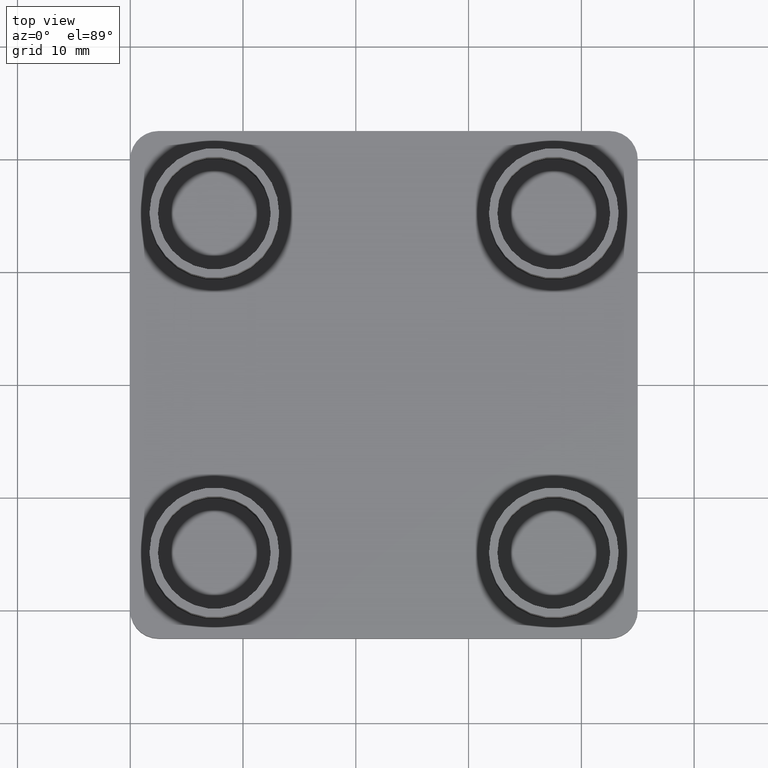
[diagram: clean part render]
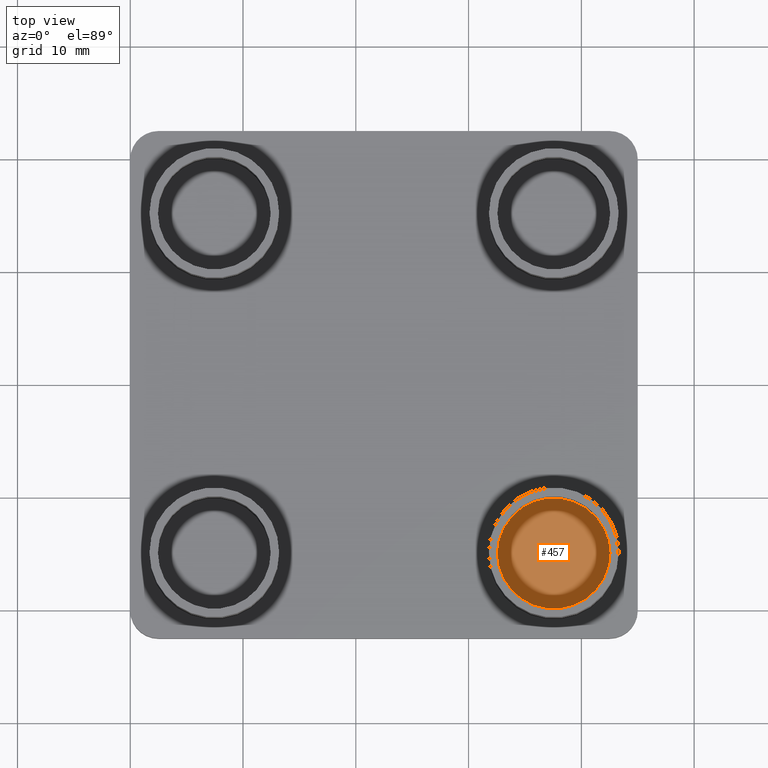
[diagram: same view with one face highlighted and labeled with its STEP entity id]
A machine part, top view. The second image highlights one B-rep face of the part: STEP entity #457.
In plain terms, the highlighted planar face has unit normal (0, 0, 1).
Its self-contained STEP definition (entity closure, byte-faithful):
#432=CARTESIAN_POINT('',(-4.500000833933882,-26.999978833734076,0.0));
#433=DIRECTION('',(0.0,0.0,1.0));
#434=DIRECTION('',(1.0,0.0,0.0));
#435=AXIS2_PLACEMENT_3D('',#432,#433,#434);
#436=PLANE('',#435);
#437=CARTESIAN_POINT('',(32.549955499869604,-15.050022499940042,0.0));
#438=VERTEX_POINT('',#437);
#439=CARTESIAN_POINT('',(42.549955499829593,-15.050022499940042,0.0));
#440=VERTEX_POINT('',#439);
#441=CARTESIAN_POINT('',(37.549955499849602,-15.050022499940042,0.0));
#442=DIRECTION('',(0.0,0.0,-1.0));
#443=DIRECTION('',(1.0,0.0,0.0));
#444=AXIS2_PLACEMENT_3D('',#441,#442,#443);
#445=CIRCLE('',#444,4.999999999980001);
#446=EDGE_CURVE('',#438,#440,#445,.T.);
#447=ORIENTED_EDGE('',*,*,#446,.F.);
#448=CARTESIAN_POINT('',(37.549955499849602,-15.050022499940042,0.0));
#449=DIRECTION('',(0.0,0.0,-1.0));
#450=DIRECTION('',(1.0,0.0,0.0));
#451=AXIS2_PLACEMENT_3D('',#448,#449,#450);
#452=CIRCLE('',#451,4.999999999980001);
#453=EDGE_CURVE('',#440,#438,#452,.T.);
#454=ORIENTED_EDGE('',*,*,#453,.F.);
#455=EDGE_LOOP('',(#447,#454));
#456=FACE_OUTER_BOUND('',#455,.T.);
#457=ADVANCED_FACE('',(#456),#436,.T.);